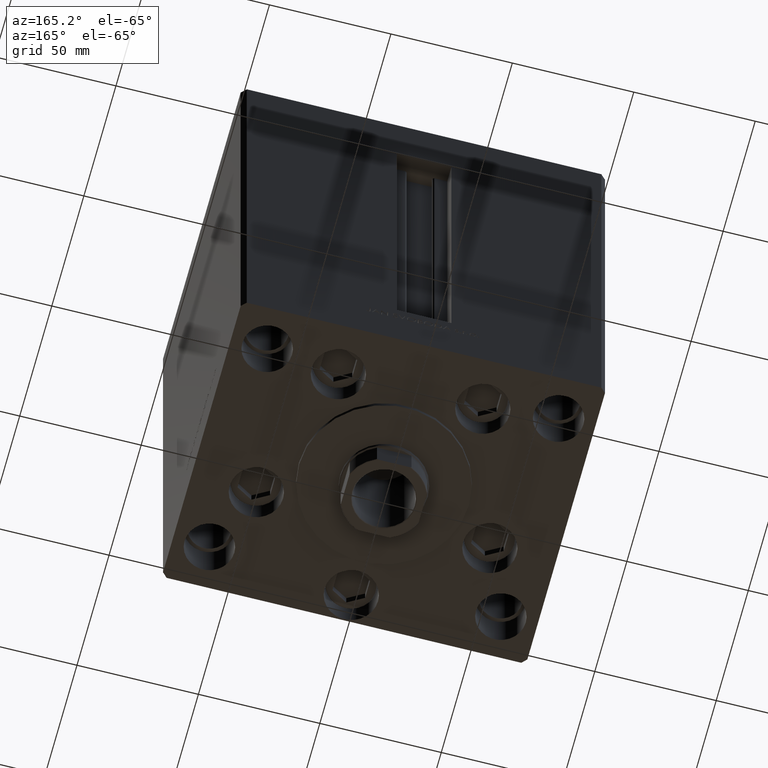
[diagram: clean part render]
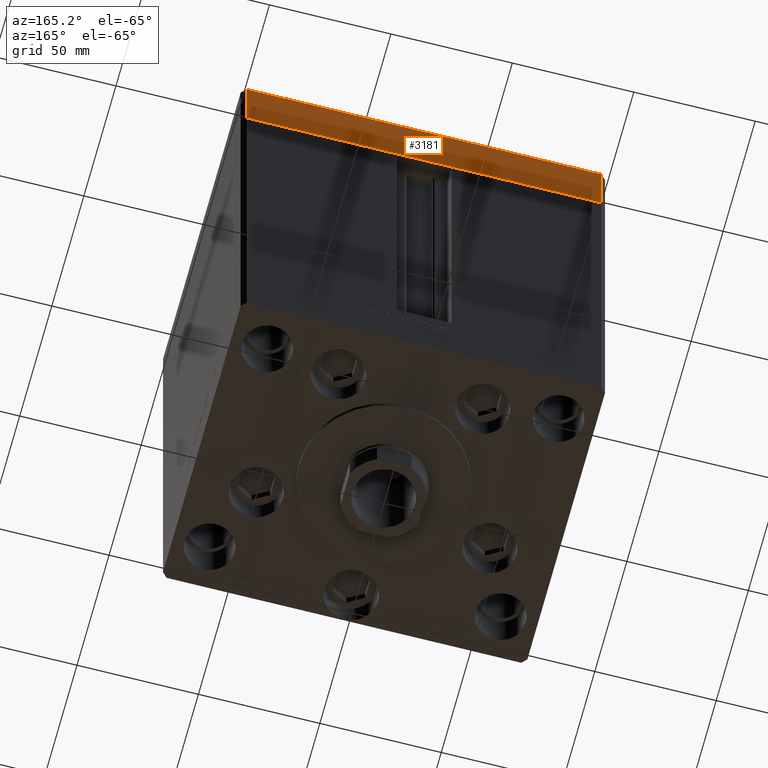
[diagram: same view with one face highlighted and labeled with its STEP entity id]
A machine part, auxiliary view. The second image highlights one B-rep face of the part: STEP entity #3181.
In plain terms, the highlighted planar face has unit normal (-0, 1, 0).
Its self-contained STEP definition (entity closure, byte-faithful):
#607 = ORIENTED_EDGE ( 'NONE', *, *, #19324, .T. ) ;
#643 = VECTOR ( 'NONE', #42164, 1000.000000000000000 ) ;
#1980 = DIRECTION ( 'NONE',  ( -1.000000000000000000, -1.901066822988282936E-16, 0.000000000000000000 ) ) ;
#3181 = ADVANCED_FACE ( 'NONE', ( #47013 ), #20782, .T. ) ;
#4262 = DIRECTION ( 'NONE',  ( -1.000000000000000000, -1.901066822988282689E-16, 0.000000000000000000 ) ) ;
#5181 = DIRECTION ( 'NONE',  ( 0.000000000000000000, 0.000000000000000000, 1.000000000000000000 ) ) ;
#5698 = VERTEX_POINT ( 'NONE', #21268 ) ;
#8898 = ORIENTED_EDGE ( 'NONE', *, *, #32121, .T. ) ;
#10255 = LINE ( 'NONE', #17950, #18187 ) ;
#10566 = VECTOR ( 'NONE', #4262, 1000.000000000000000 ) ;
#11300 = EDGE_CURVE ( 'NONE', #5698, #27686, #38944, .T. ) ;
#15093 = VERTEX_POINT ( 'NONE', #20055 ) ;
#15193 = CARTESIAN_POINT ( 'NONE',  ( -73.00000000000001421, 62.49999999999998579, 0.000000000000000000 ) ) ;
#16642 = CARTESIAN_POINT ( 'NONE',  ( 72.99999999999992895, 62.50000000000001421, 0.000000000000000000 ) ) ;
#17950 = CARTESIAN_POINT ( 'NONE',  ( -73.00000000000001421, 62.49999999999998579, -27.00000000000000000 ) ) ;
#18187 = VECTOR ( 'NONE', #33272, 1000.000000000000000 ) ;
#19324 = EDGE_CURVE ( 'NONE', #39712, #27686, #10255, .T. ) ;
#20055 = CARTESIAN_POINT ( 'NONE',  ( 72.99999999999992895, 62.50000000000001421, -27.00000000000000000 ) ) ;
#20782 = PLANE ( 'NONE',  #31897 ) ;
#21268 = CARTESIAN_POINT ( 'NONE',  ( 72.99999999999992895, 62.50000000000001421, 0.000000000000000000 ) ) ;
#25084 = EDGE_CURVE ( 'NONE', #15093, #5698, #28668, .T. ) ;
#27686 = VERTEX_POINT ( 'NONE', #15193 ) ;
#28429 = CARTESIAN_POINT ( 'NONE',  ( 72.99999999999992895, 62.50000000000001421, -27.00000000000000000 ) ) ;
#28668 = LINE ( 'NONE', #28429, #32583 ) ;
#31897 = AXIS2_PLACEMENT_3D ( 'NONE', #39126, #36137, #1980 ) ;
#32121 = EDGE_CURVE ( 'NONE', #15093, #39712, #41897, .T. ) ;
#32583 = VECTOR ( 'NONE', #5181, 1000.000000000000000 ) ;
#33272 = DIRECTION ( 'NONE',  ( 0.000000000000000000, 0.000000000000000000, 1.000000000000000000 ) ) ;
#34220 = CARTESIAN_POINT ( 'NONE',  ( 72.99999999999992895, 62.50000000000001421, -27.00000000000000000 ) ) ;
#36137 = DIRECTION ( 'NONE',  ( -1.901066822988282936E-16, 1.000000000000000000, 0.000000000000000000 ) ) ;
#38944 = LINE ( 'NONE', #16642, #643 ) ;
#39126 = CARTESIAN_POINT ( 'NONE',  ( 72.99999999999992895, 62.50000000000001421, -27.00000000000000000 ) ) ;
#39202 = CARTESIAN_POINT ( 'NONE',  ( -73.00000000000001421, 62.49999999999998579, -27.00000000000000000 ) ) ;
#39712 = VERTEX_POINT ( 'NONE', #39202 ) ;
#41897 = LINE ( 'NONE', #34220, #10566 ) ;
#42164 = DIRECTION ( 'NONE',  ( -1.000000000000000000, -1.901066822988282689E-16, 0.000000000000000000 ) ) ;
#44260 = EDGE_LOOP ( 'NONE', ( #46863, #46332, #8898, #607 ) ) ;
#46332 = ORIENTED_EDGE ( 'NONE', *, *, #25084, .F. ) ;
#46863 = ORIENTED_EDGE ( 'NONE', *, *, #11300, .F. ) ;
#47013 = FACE_OUTER_BOUND ( 'NONE', #44260, .T. ) ;